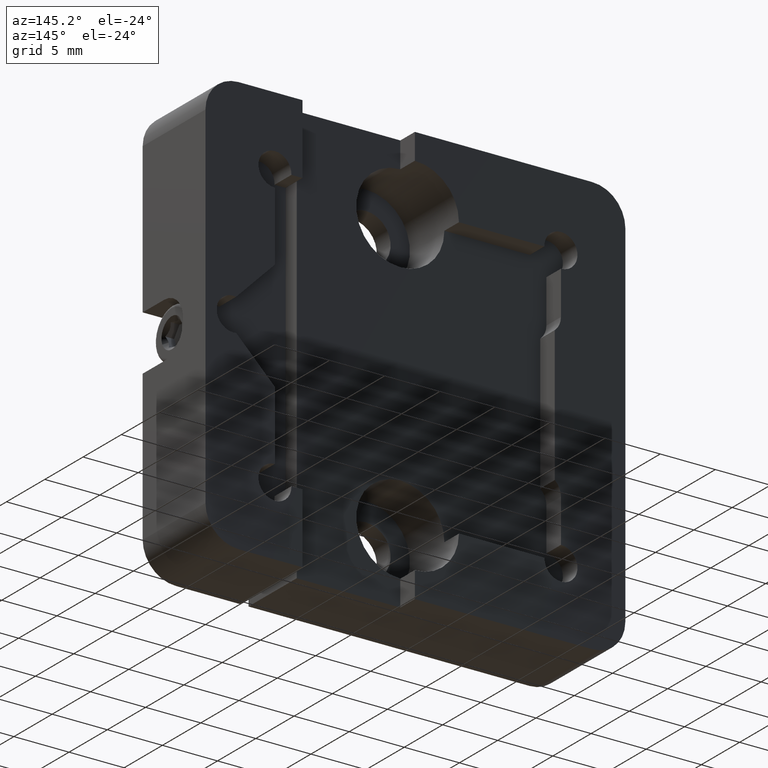
[diagram: clean part render]
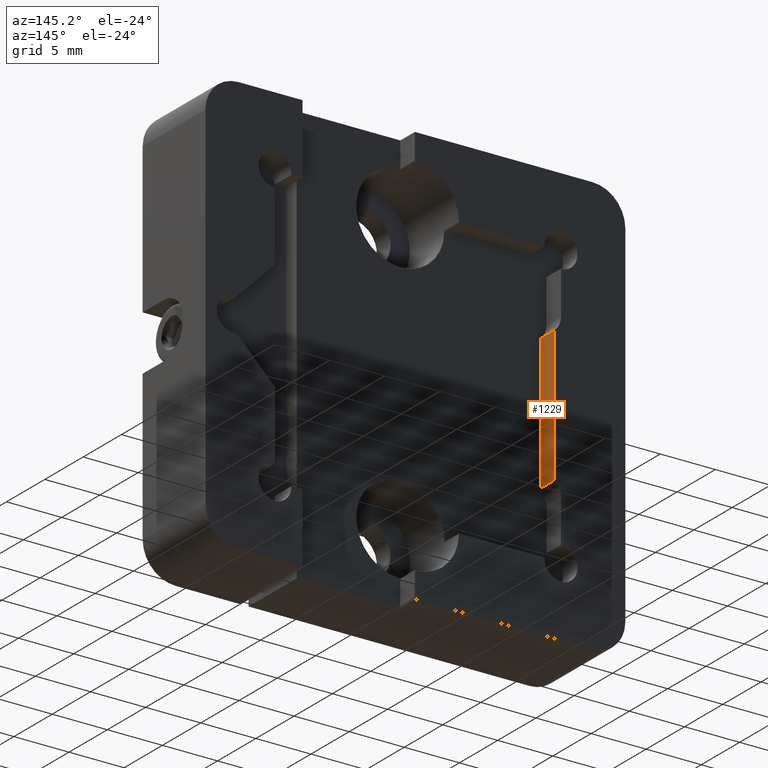
[diagram: same view with one face highlighted and labeled with its STEP entity id]
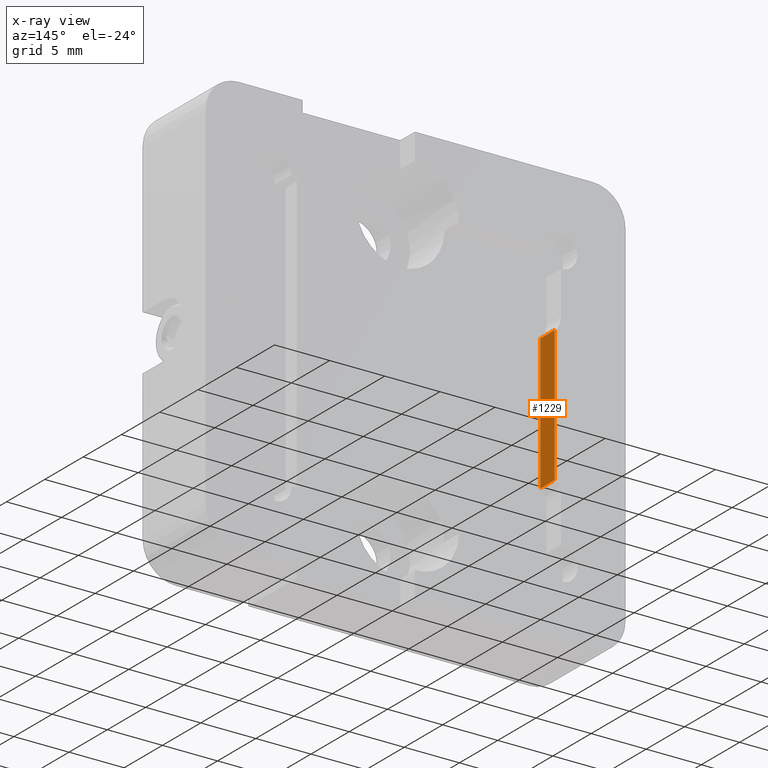
[diagram: x-ray of the same camera — body ghosted, the highlighted face saturated]
A machine part, auxiliary view. The second image highlights one B-rep face of the part: STEP entity #1229.
The next image is the same camera in x-ray: the body ghosted, the highlighted face saturated — about 0% of this face is hidden behind the body in this view.
In plain terms, the highlighted planar face has unit normal (-1, 0, 0).
Its self-contained STEP definition (entity closure, byte-faithful):
#35 = EDGE_CURVE ( 'NONE', #2643, #3073, #552, .T. ) ;
#350 = AXIS2_PLACEMENT_3D ( 'NONE', #5271, #667, #4310 ) ;
#552 = LINE ( 'NONE', #6488, #806 ) ;
#594 = CARTESIAN_POINT ( 'NONE',  ( -12.65000000000000213, 4.072500000000000675, -6.115051287312481598 ) ) ;
#667 = DIRECTION ( 'NONE',  ( -1.000000000000000000, 0.000000000000000000, 1.359128355056847692E-16 ) ) ;
#747 = VECTOR ( 'NONE', #6093, 1000.000000000000000 ) ;
#806 = VECTOR ( 'NONE', #1986, 1000.000000000000000 ) ;
#825 = VERTEX_POINT ( 'NONE', #1576 ) ;
#1229 = ADVANCED_FACE ( 'NONE', ( #2724 ), #4711, .F. ) ;
#1419 = VECTOR ( 'NONE', #2164, 1000.000000000000000 ) ;
#1445 = ORIENTED_EDGE ( 'NONE', *, *, #6029, .F. ) ;
#1576 = CARTESIAN_POINT ( 'NONE',  ( -12.64999999999999858, 2.172499999999999876, 6.115051287312478046 ) ) ;
#1986 = DIRECTION ( 'NONE',  ( 1.359128355056847692E-16, -0.000000000000000000, 1.000000000000000000 ) ) ;
#2048 = ORIENTED_EDGE ( 'NONE', *, *, #35, .T. ) ;
#2054 = CARTESIAN_POINT ( 'NONE',  ( -12.64999999999999858, 4.072500000000000675, 6.115051287312478046 ) ) ;
#2164 = DIRECTION ( 'NONE',  ( -0.000000000000000000, 1.000000000000000000, -0.000000000000000000 ) ) ;
#2178 = VECTOR ( 'NONE', #6216, 1000.000000000000000 ) ;
#2643 = VERTEX_POINT ( 'NONE', #594 ) ;
#2724 = FACE_OUTER_BOUND ( 'NONE', #5458, .T. ) ;
#2990 = CARTESIAN_POINT ( 'NONE',  ( -12.65000000000000036, 2.172500000000000320, 1.723816470927476308E-15 ) ) ;
#3073 = VERTEX_POINT ( 'NONE', #2054 ) ;
#3142 = LINE ( 'NONE', #5133, #2178 ) ;
#3217 = ORIENTED_EDGE ( 'NONE', *, *, #5950, .T. ) ;
#3292 = CARTESIAN_POINT ( 'NONE',  ( -12.65000000000000213, 2.172499999999999876, -6.115051287312481598 ) ) ;
#3950 = EDGE_CURVE ( 'NONE', #6486, #825, #6484, .T. ) ;
#4310 = DIRECTION ( 'NONE',  ( 1.359128355056847692E-16, 0.000000000000000000, 1.000000000000000000 ) ) ;
#4612 = LINE ( 'NONE', #5236, #1419 ) ;
#4711 = PLANE ( 'NONE',  #350 ) ;
#5133 = CARTESIAN_POINT ( 'NONE',  ( -12.64999999999999858, 2.172499999999999876, 6.115051287312478046 ) ) ;
#5236 = CARTESIAN_POINT ( 'NONE',  ( -12.65000000000000213, 2.172499999999999876, -6.115051287312481598 ) ) ;
#5271 = CARTESIAN_POINT ( 'NONE',  ( -12.65000000000000213, 2.222500000000000586, -12.76349999999999874 ) ) ;
#5458 = EDGE_LOOP ( 'NONE', ( #3217, #2048, #1445, #5652 ) ) ;
#5652 = ORIENTED_EDGE ( 'NONE', *, *, #3950, .F. ) ;
#5950 = EDGE_CURVE ( 'NONE', #6486, #2643, #4612, .T. ) ;
#6029 = EDGE_CURVE ( 'NONE', #825, #3073, #3142, .T. ) ;
#6093 = DIRECTION ( 'NONE',  ( 1.359128355056847692E-16, 0.000000000000000000, 1.000000000000000000 ) ) ;
#6216 = DIRECTION ( 'NONE',  ( 0.000000000000000000, 1.000000000000000000, 0.000000000000000000 ) ) ;
#6484 = LINE ( 'NONE', #2990, #747 ) ;
#6486 = VERTEX_POINT ( 'NONE', #3292 ) ;
#6488 = CARTESIAN_POINT ( 'NONE',  ( -12.65000000000000036, 4.072500000000000675, -15.87499999999999645 ) ) ;